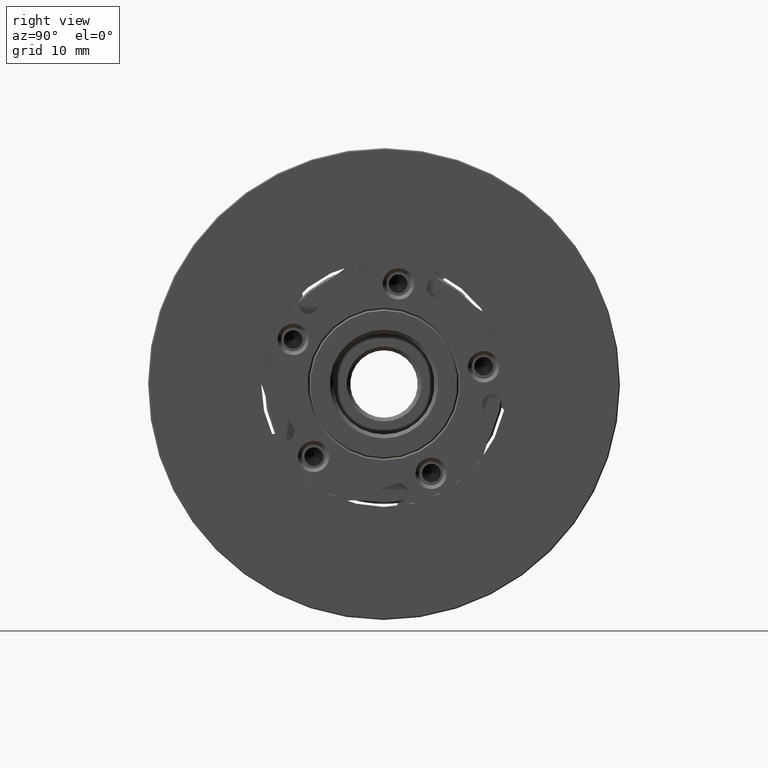
[diagram: clean part render]
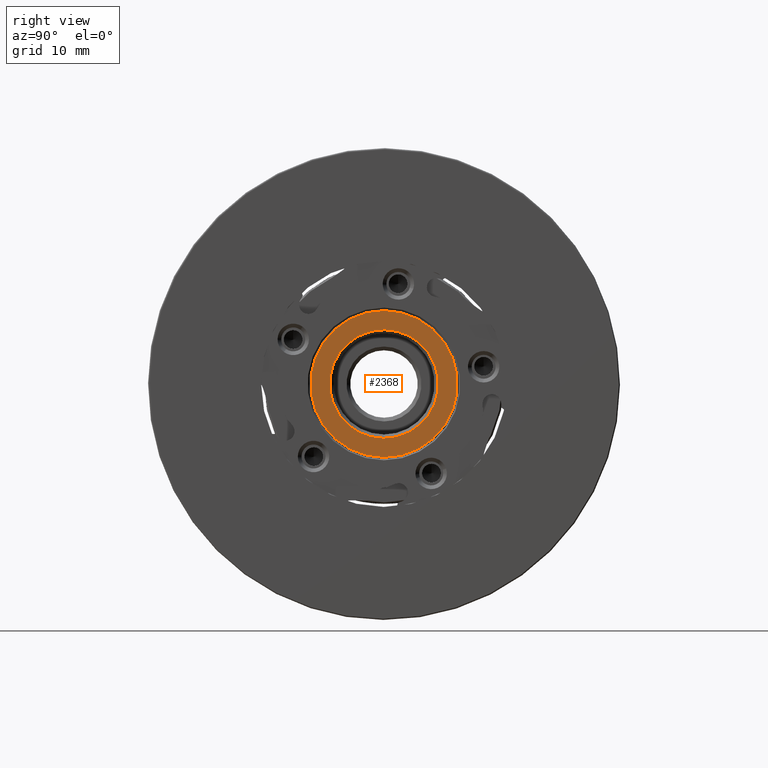
[diagram: same view with one face highlighted and labeled with its STEP entity id]
A machine part, right view. The second image highlights one B-rep face of the part: STEP entity #2368.
In plain terms, the highlighted planar face has unit normal (1, 0, 0).
Its self-contained STEP definition (entity closure, byte-faithful):
#308 = DIRECTION ( 'NONE',  ( 1.000000000000000000, -0.0000000000000000000, -0.0000000000000000000 ) ) ;
#401 = CARTESIAN_POINT ( 'NONE',  ( 0.0000000000000000000, 0.0000000000000000000, 0.0000000000000000000 ) ) ;
#558 = EDGE_CURVE ( 'NONE', #3644, #3264, #2978, .T. ) ;
#593 = ORIENTED_EDGE ( 'NONE', *, *, #4401, .T. ) ;
#605 = CARTESIAN_POINT ( 'NONE',  ( 0.0000000000000000000, 0.0000000000000000000, 0.0000000000000000000 ) ) ;
#688 = CARTESIAN_POINT ( 'NONE',  ( 0.0000000000000000000, 0.0000000000000000000, 0.0000000000000000000 ) ) ;
#872 = PLANE ( 'NONE',  #1398 ) ;
#916 = AXIS2_PLACEMENT_3D ( 'NONE', #1297, #2304, #3979 ) ;
#1297 = CARTESIAN_POINT ( 'NONE',  ( 0.0000000000000000000, 0.0000000000000000000, 0.0000000000000000000 ) ) ;
#1398 = AXIS2_PLACEMENT_3D ( 'NONE', #401, #6712, #3040 ) ;
#1538 = CARTESIAN_POINT ( 'NONE',  ( 0.0000000000000000000, 0.0000000000000000000, -7.250000000000000888 ) ) ;
#1614 = CARTESIAN_POINT ( 'NONE',  ( 0.0000000000000000000, 8.878689293818312046E-16, 7.250000000000000888 ) ) ;
#1831 = CARTESIAN_POINT ( 'NONE',  ( 0.0000000000000000000, 0.0000000000000000000, 0.0000000000000000000 ) ) ;
#2268 = CIRCLE ( 'NONE', #916, 7.250000000000000888 ) ;
#2304 = DIRECTION ( 'NONE',  ( 1.000000000000000000, -0.0000000000000000000, -0.0000000000000000000 ) ) ;
#2313 = ORIENTED_EDGE ( 'NONE', *, *, #558, .T. ) ;
#2368 = ADVANCED_FACE ( 'NONE', ( #6063, #3101 ), #872, .T. ) ;
#2374 = AXIS2_PLACEMENT_3D ( 'NONE', #688, #4392, #2843 ) ;
#2406 = DIRECTION ( 'NONE',  ( 0.0000000000000000000, 0.0000000000000000000, -1.000000000000000000 ) ) ;
#2677 = EDGE_LOOP ( 'NONE', ( #2313, #593 ) ) ;
#2843 = DIRECTION ( 'NONE',  ( 0.0000000000000000000, 0.0000000000000000000, -1.000000000000000000 ) ) ;
#2978 = CIRCLE ( 'NONE', #3105, 9.800000000000000711 ) ;
#3040 = DIRECTION ( 'NONE',  ( -0.0000000000000000000, 0.0000000000000000000, -1.000000000000000000 ) ) ;
#3101 = FACE_OUTER_BOUND ( 'NONE', #2677, .T. ) ;
#3105 = AXIS2_PLACEMENT_3D ( 'NONE', #1831, #308, #2406 ) ;
#3204 = DIRECTION ( 'NONE',  ( 1.000000000000000000, -0.0000000000000000000, -0.0000000000000000000 ) ) ;
#3264 = VERTEX_POINT ( 'NONE', #5307 ) ;
#3322 = CIRCLE ( 'NONE', #2374, 7.250000000000000888 ) ;
#3464 = EDGE_CURVE ( 'NONE', #5180, #5610, #2268, .T. ) ;
#3644 = VERTEX_POINT ( 'NONE', #5561 ) ;
#3947 = EDGE_CURVE ( 'NONE', #5610, #5180, #3322, .T. ) ;
#3979 = DIRECTION ( 'NONE',  ( 0.0000000000000000000, 0.0000000000000000000, -1.000000000000000000 ) ) ;
#4392 = DIRECTION ( 'NONE',  ( 1.000000000000000000, -0.0000000000000000000, -0.0000000000000000000 ) ) ;
#4401 = EDGE_CURVE ( 'NONE', #3264, #3644, #5101, .T. ) ;
#4470 = ORIENTED_EDGE ( 'NONE', *, *, #3464, .F. ) ;
#4823 = EDGE_LOOP ( 'NONE', ( #6316, #4470 ) ) ;
#5101 = CIRCLE ( 'NONE', #6075, 9.800000000000000711 ) ;
#5180 = VERTEX_POINT ( 'NONE', #1614 ) ;
#5307 = CARTESIAN_POINT ( 'NONE',  ( 0.0000000000000000000, 1.212400331155879702E-15, -9.800000000000000711 ) ) ;
#5561 = CARTESIAN_POINT ( 'NONE',  ( 0.0000000000000000000, 0.0000000000000000000, 9.800000000000000711 ) ) ;
#5610 = VERTEX_POINT ( 'NONE', #1538 ) ;
#5914 = DIRECTION ( 'NONE',  ( 0.0000000000000000000, 0.0000000000000000000, -1.000000000000000000 ) ) ;
#6063 = FACE_BOUND ( 'NONE', #4823, .T. ) ;
#6075 = AXIS2_PLACEMENT_3D ( 'NONE', #605, #3204, #5914 ) ;
#6316 = ORIENTED_EDGE ( 'NONE', *, *, #3947, .F. ) ;
#6712 = DIRECTION ( 'NONE',  ( 1.000000000000000000, 0.0000000000000000000, -0.0000000000000000000 ) ) ;